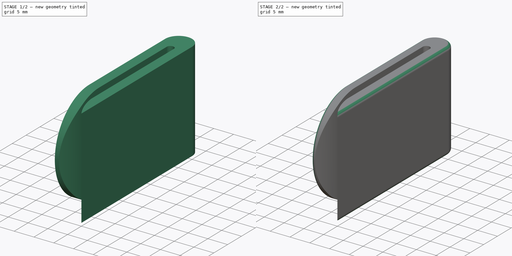
[diagram: build sequence overview — one tinted view per stage of 2, left to right]
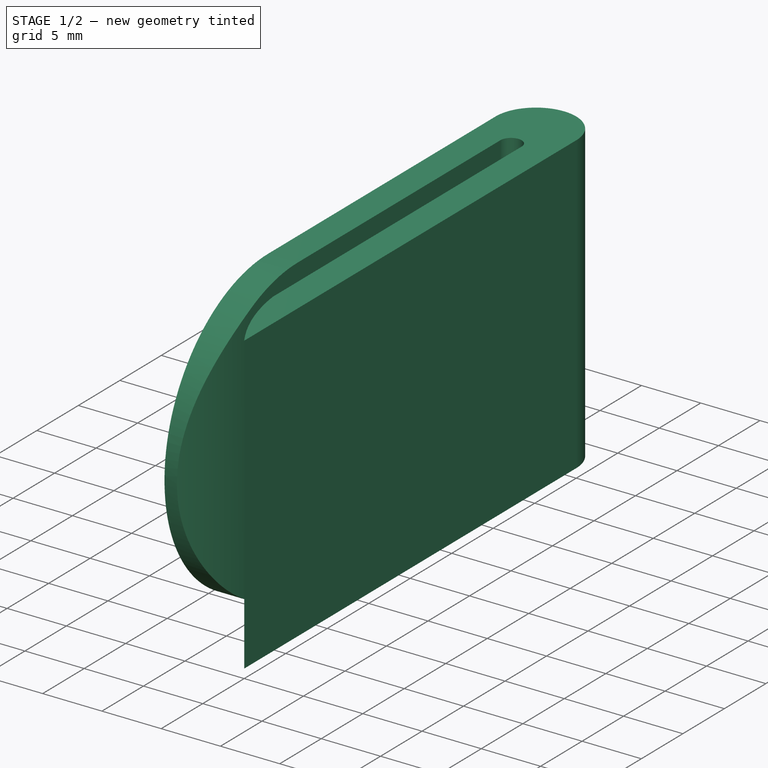
[diagram: stage 1 of 2 — iso view after this stage's code; geometry added in this stage tinted green]
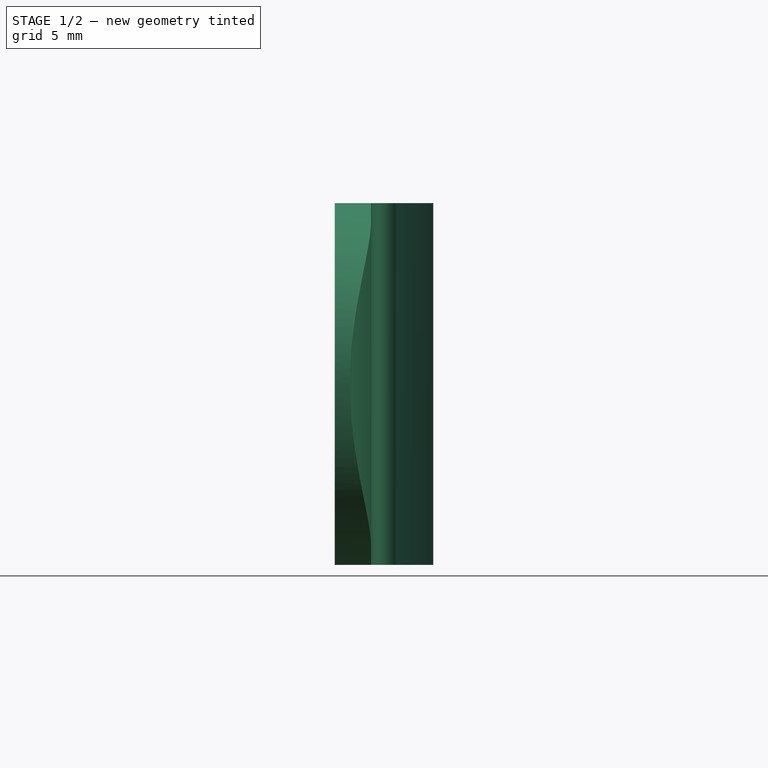
[diagram: stage 1 of 2 — front view after this stage's code; geometry added in this stage tinted green]
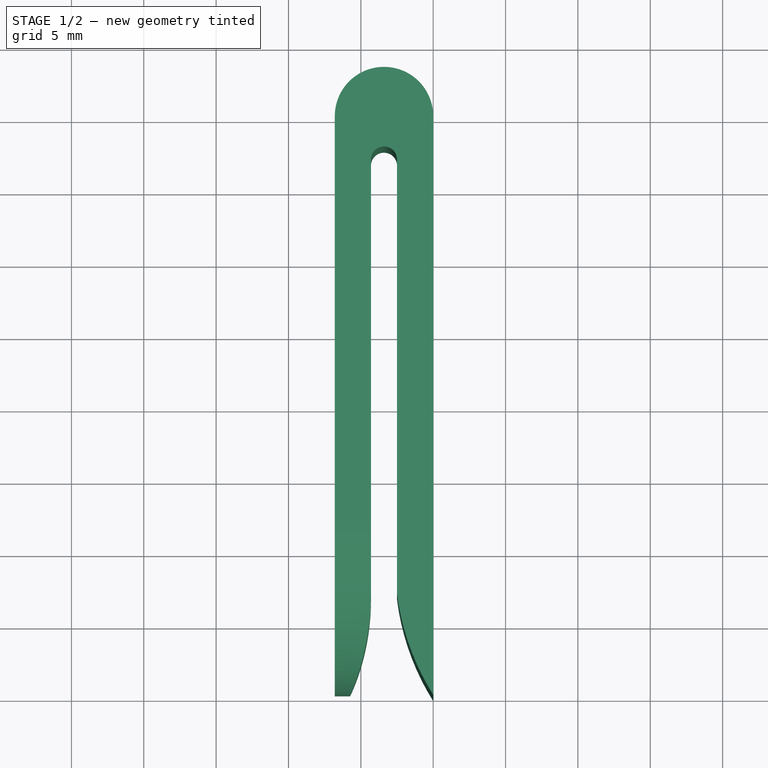
[diagram: stage 1 of 2 — top view after this stage's code; geometry added in this stage tinted green]
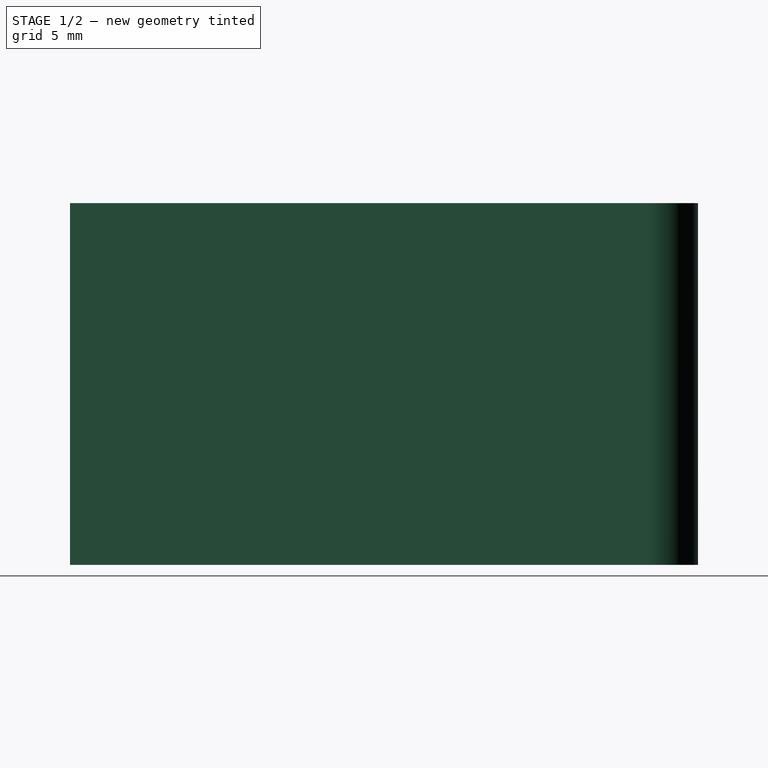
[diagram: stage 1 of 2 — right view after this stage's code; geometry added in this stage tinted green]
FCSTD DOCUMENT  (FreeCAD 0.18R16146 (Git))
Label: bt-rx-tx-clip
License: All rights reserved
LicenseURL: http://en.wikipedia.org/wiki/All_rights_reserved
objects: Sketcher::SketchObject×2, PartDesign::Pad×1, PartDesign::Pocket×1, PartDesign::Fillet×1, PartDesign::Body×1
note: 8 computed .brp shape members not serialized (recipe doc carries the construction recipe); baked Part::Feature solids carry a one-line shape summary decoded from their .brp

FEATURE [Sketcher::SketchObject] Sketch
  MapMode = 5
  Support = -> [XY_Plane]
  sketch-geometry (9):
    g0: LineSegment StartX=-6.8 StartY=40 StartZ=0 EndX=-6.8 EndY=0 EndZ=0
    g1: LineSegment StartX=-4.3 StartY=7 StartZ=0 EndX=-4.3 EndY=37 EndZ=0
    g2: LineSegment StartX=-2.5 StartY=37 StartZ=0 EndX=-2.5 EndY=7 EndZ=0
    g3: ArcOfCircle CenterX=14.5865 CenterY=9.15588 CenterZ=0 NormalX=0 NormalY=0 NormalZ=1 AngleXU=0 Radius=17.2219 StartAngle=3.2671 EndAngle=3.70213
    g4: LineSegment StartX=0 StartY=-3.6e-15 StartZ=0 EndX=0 EndY=40 EndZ=0
    g5: ArcOfCircle CenterX=-21.3833 CenterY=7 CenterZ=0 NormalX=0 NormalY=0 NormalZ=1 AngleXU=0 Radius=17.0833 StartAngle=5.861 EndAngle=6.28319
    g6: ArcOfCircle CenterX=-3.4 CenterY=37 CenterZ=0 NormalX=0 NormalY=0 NormalZ=1 AngleXU=0 Radius=0.9 StartAngle=-1.8e-15 EndAngle=3.14159
    g7: ArcOfCircle CenterX=-3.4 CenterY=40 CenterZ=0 NormalX=0 NormalY=0 NormalZ=1 AngleXU=0 Radius=3.4 StartAngle=5e-16 EndAngle=3.14159
    g8: LineSegment StartX=-6.8 StartY=-3.6e-15 StartZ=0 EndX=-5.8 EndY=-3.6e-15 EndZ=0
  constraints (26):
    c: Vertical(g0)
    c: Vertical(g1)
    c: Vertical(g2)
    c: Vertical(g4)
    c: Coincident(g6,g1)
    c: Coincident(g6,g2)
    c: DistanceY(g4,g4) = 40
    c: DistanceY(g1,g1) = 30
    c: Coincident(g1,g5)
    c: Horizontal(g1,g5)
    c: Coincident(g2,g3)
    c: DistanceX(g1,g2) = 1.8
    c: Tangent(g7,g4) = -1.5708
    c: Tangent(g7,g0) = -1.5708
    c: Horizontal(g6,g2)
    c: Horizontal(g1,g2)
    c: DistanceY(g2,g4) = 3
    c: Coincident(g8,g0)
    c: Coincident(g8,g5)
    c: Horizontal(g8)
    c: Horizontal(g0,g4)
    c: Coincident(g4,g-1)
    c: DistanceX(g8,g8) = 1
    c: DistanceX(g0,g1) = 2.5
    c: Coincident(g3,g4)
    c: DistanceX(g2,g3) = 2.5
FEATURE [PartDesign::Pad] Pad
  Length = 25
  Length2 = 100
  Profile = -> Sketch
  Type = 0
FEATURE [Sketcher::SketchObject] Sketch001
  MapMode = 5
  Placement = pos=(-7.5,0,0) rot=(0.57735,-0.57735,-0.57735;2.0944rad)
  sketch-geometry (4):
    g0: ArcOfCircle CenterX=-12.6087 CenterY=12.5 CenterZ=0 NormalX=0 NormalY=0 NormalZ=1 AngleXU=0 Radius=12.5 StartAngle=4.71239 EndAngle=7.85398
    g1: LineSegment StartX=-12.6087 StartY=25 StartZ=0 EndX=7.39132 EndY=25 EndZ=0
    g2: LineSegment StartX=7.39132 StartY=25 StartZ=0 EndX=7.39132 EndY=0 EndZ=0
    g3: LineSegment StartX=7.39132 StartY=0 StartZ=0 EndX=-12.6087 EndY=0 EndZ=0
  constraints (12):
    c: Coincident(g0,g1)
    c: Coincident(g1,g2)
    c: Vertical(g2)
    c: Horizontal(g1)
    c: DistanceX(g1,g1) = 20
    c: Vertical(g0,g0)
    c: DistanceY(g2,g2) = 25
    c: Vertical(g0,g0)
    c: Coincident(g3,g2)
    c: Coincident(g3,g0)
    c: Horizontal(g3)
    c: Horizontal(g-1,g2)
FEATURE [PartDesign::Pocket] Pocket
  BaseFeature = -> Pad
  Length = 5
  Length2 = 100
  Profile = -> Sketch001
  Type = 0
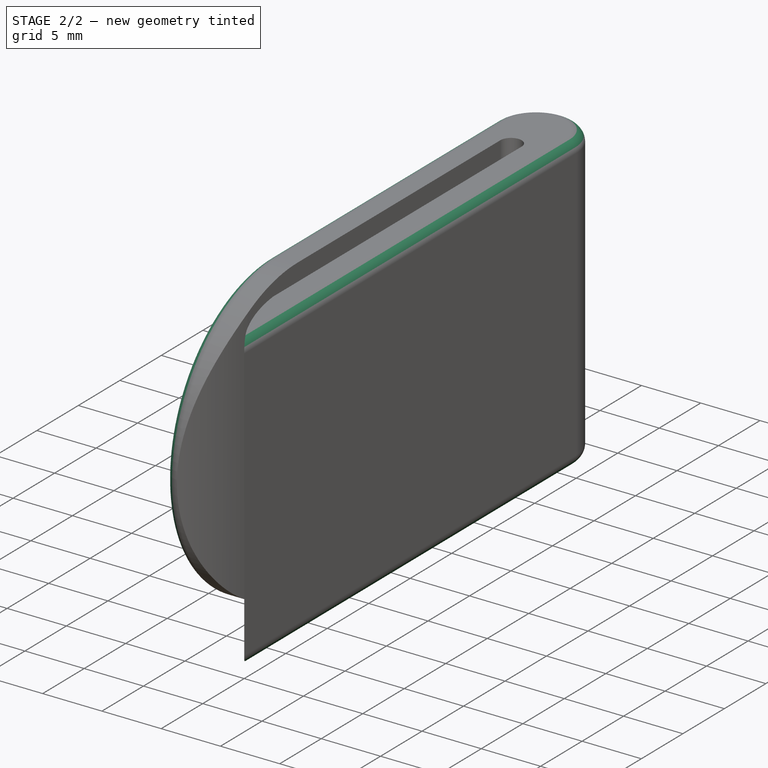
[diagram: stage 2 of 2 — iso view after this stage's code; geometry added in this stage tinted green]
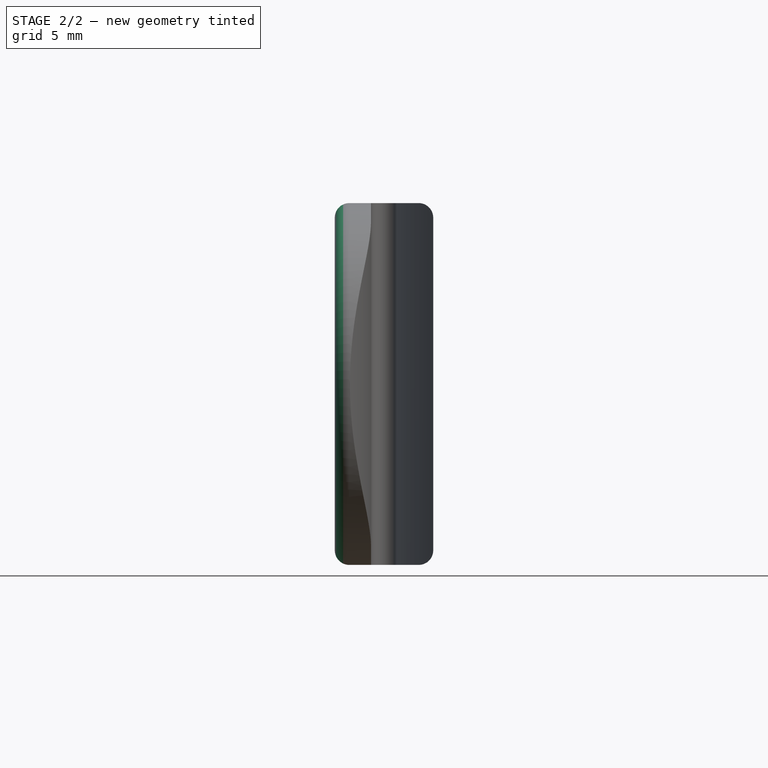
[diagram: stage 2 of 2 — front view after this stage's code; geometry added in this stage tinted green]
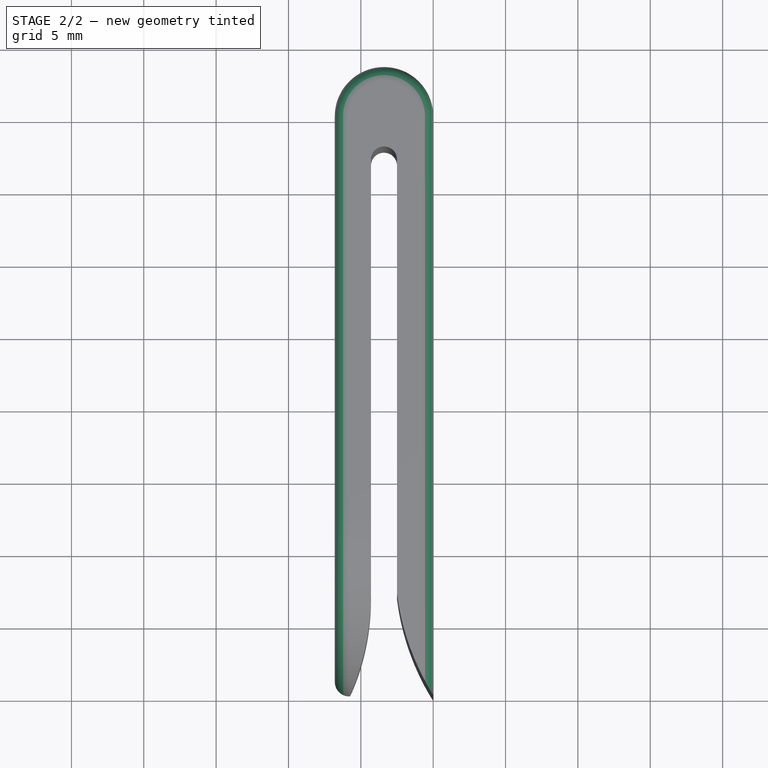
[diagram: stage 2 of 2 — top view after this stage's code; geometry added in this stage tinted green]
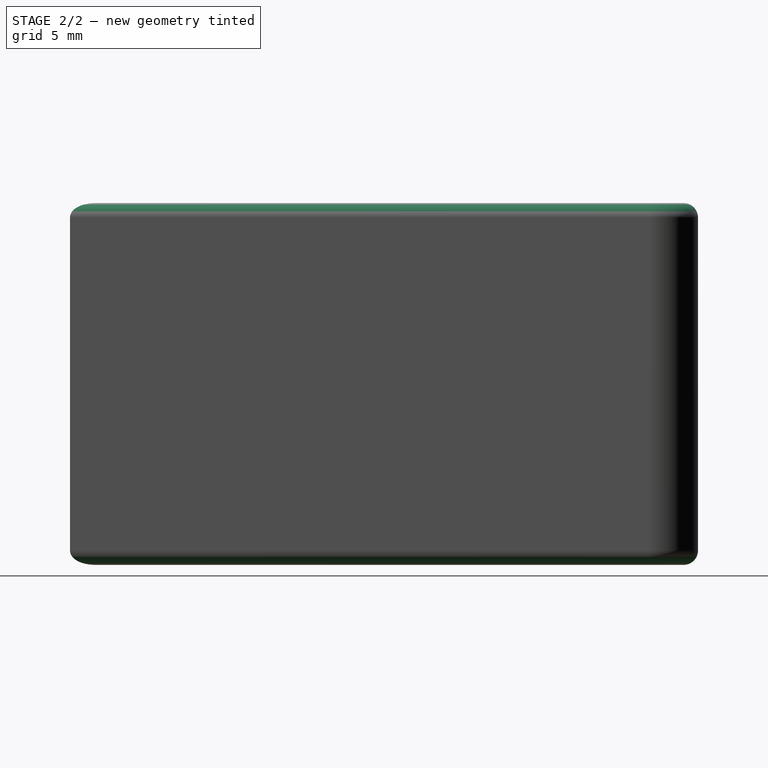
[diagram: stage 2 of 2 — right view after this stage's code; geometry added in this stage tinted green]
FEATURE [PartDesign::Fillet] Fillet
  Base = -> Pocket [Face10]
  BaseFeature = -> Pocket
  Radius = 1
FEATURE [PartDesign::Body] Body
  Group = -> [Sketch,Pad,Sketch001,Pocket,Fillet]
  Origin = -> Origin
  Tip = -> Fillet
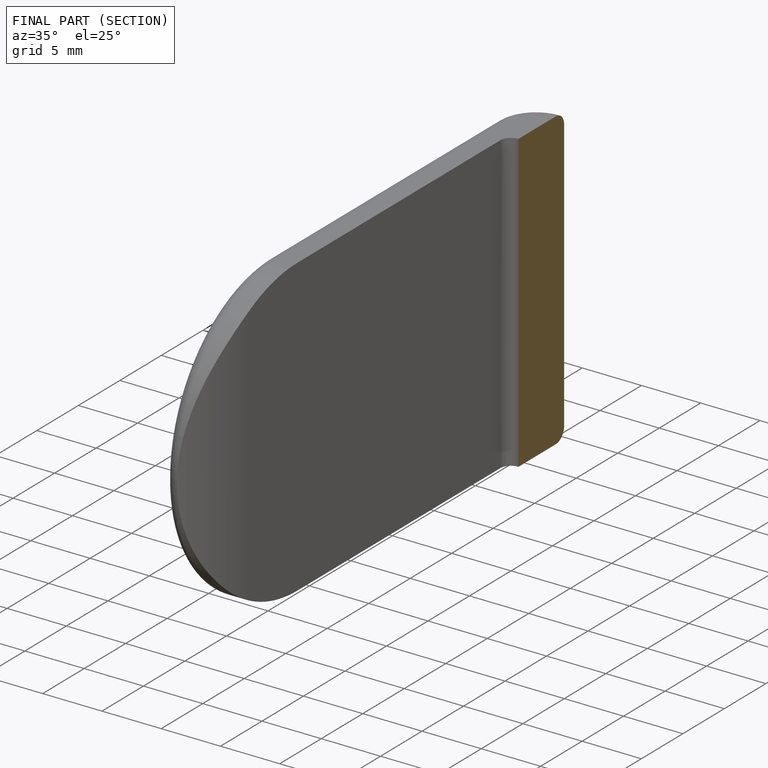
[diagram: finished part — half-section view (interior)]
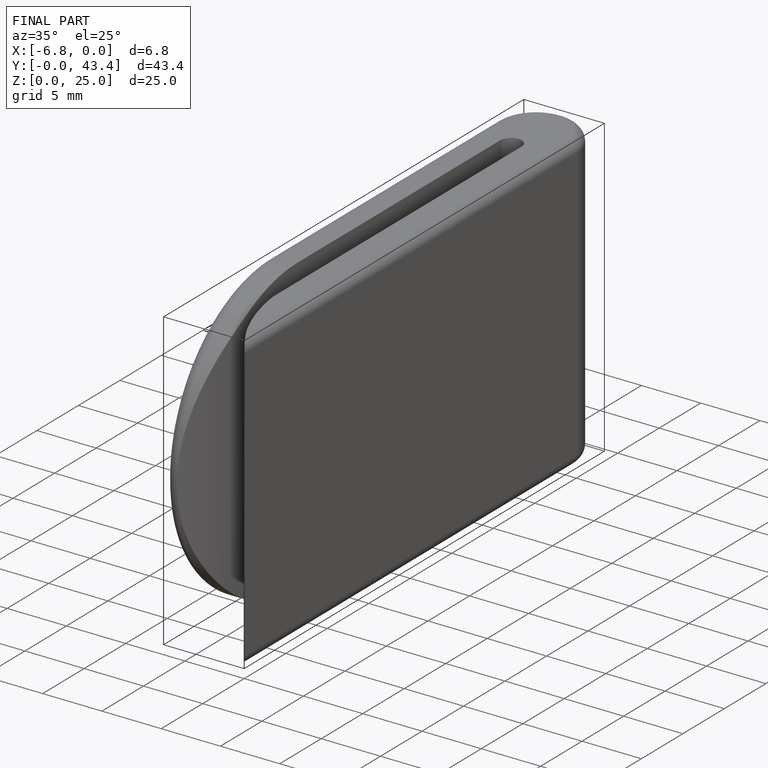
[diagram: finished part — iso view with bounding-box wireframe]
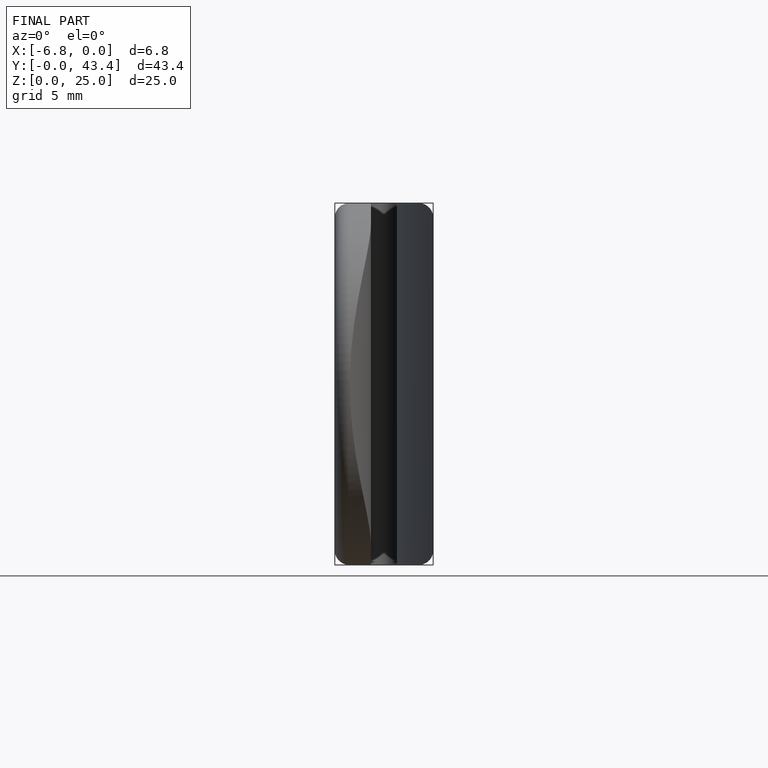
[diagram: finished part — front view with bounding-box wireframe]
